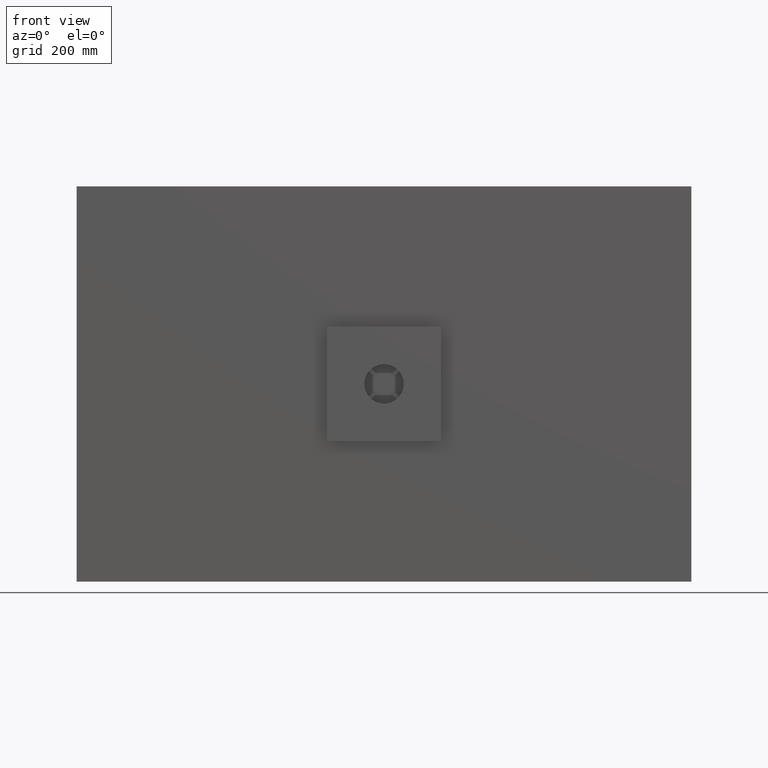
[diagram: clean part render]
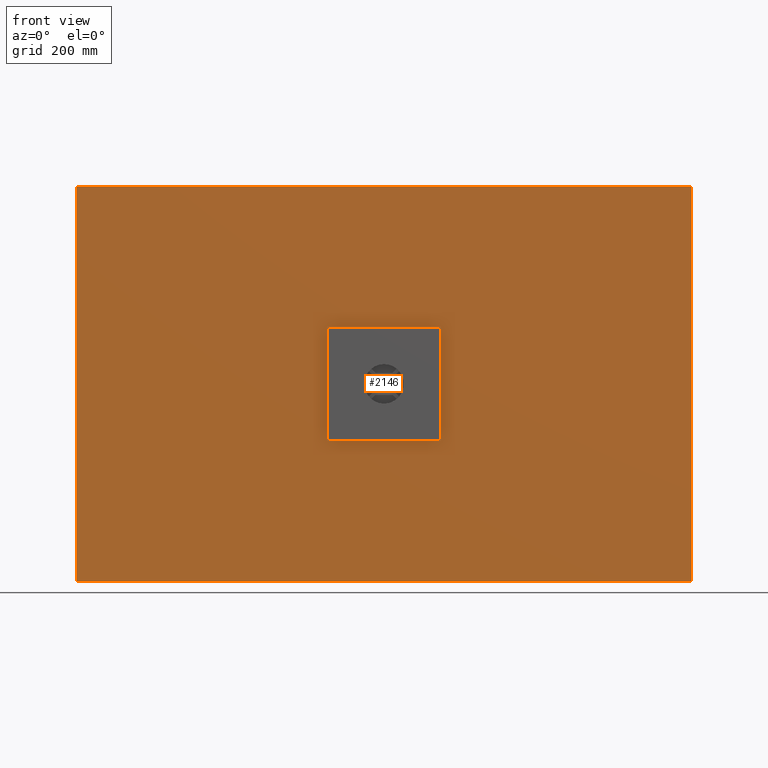
[diagram: same view with one face highlighted and labeled with its STEP entity id]
A machine part, front view. The second image highlights one B-rep face of the part: STEP entity #2146.
In plain terms, the highlighted planar face has unit normal (0, 1, 0).
Its self-contained STEP definition (entity closure, byte-faithful):
#27 = ORIENTED_EDGE ( 'NONE', *, *, #1343, .T. ) ;
#62 = FACE_OUTER_BOUND ( 'NONE', #994, .T. ) ;
#136 = CARTESIAN_POINT ( 'NONE',  ( -700.0000000000002300, 0.0000000000000000000, 450.0000000000001700 ) ) ;
#151 = DIRECTION ( 'NONE',  ( 0.0000000000000000000, 0.0000000000000000000, 1.000000000000000000 ) ) ;
#156 = DIRECTION ( 'NONE',  ( 0.0000000000000000000, 1.000000000000000000, 0.0000000000000000000 ) ) ;
#157 = CARTESIAN_POINT ( 'NONE',  ( 699.9999999999993200, 0.0000000000000000000, -449.9999999999998900 ) ) ;
#283 = ORIENTED_EDGE ( 'NONE', *, *, #2974, .T. ) ;
#379 = LINE ( 'NONE', #1898, #405 ) ;
#384 = EDGE_CURVE ( 'NONE', #2348, #1573, #1079, .T. ) ;
#392 = VECTOR ( 'NONE', #1949, 1000.000000000000000 ) ;
#405 = VECTOR ( 'NONE', #2882, 1000.000000000000000 ) ;
#411 = LINE ( 'NONE', #1636, #392 ) ;
#422 = CARTESIAN_POINT ( 'NONE',  ( -700.0000000000002300, 0.0000000000000000000, -449.9999999999998900 ) ) ;
#455 = VECTOR ( 'NONE', #567, 1000.000000000000000 ) ;
#461 = CARTESIAN_POINT ( 'NONE',  ( -700.0000000000002300, 0.0000000000000000000, 450.0000000000001700 ) ) ;
#524 = CARTESIAN_POINT ( 'NONE',  ( 77.50000000000056800, 0.0000000000000000000, 77.50000000000024200 ) ) ;
#540 = CIRCLE ( 'NONE', #2760, 2.500000000000002200 ) ;
#567 = DIRECTION ( 'NONE',  ( -1.000000000000000000, -0.0000000000000000000, 1.790682297782510200E-016 ) ) ;
#590 = FACE_BOUND ( 'NONE', #739, .T. ) ;
#674 = VERTEX_POINT ( 'NONE', #461 ) ;
#699 = EDGE_CURVE ( 'NONE', #1507, #2863, #540, .T. ) ;
#709 = CARTESIAN_POINT ( 'NONE',  ( -80.00000000000007100, 0.0000000000000000000, -77.49999999999990100 ) ) ;
#720 = DIRECTION ( 'NONE',  ( 0.0000000000000000000, 0.0000000000000000000, 1.000000000000000000 ) ) ;
#739 = EDGE_LOOP ( 'NONE', ( #1808, #2037, #27, #2326, #2024, #803, #283, #1594 ) ) ;
#761 = ORIENTED_EDGE ( 'NONE', *, *, #1483, .F. ) ;
#803 = ORIENTED_EDGE ( 'NONE', *, *, #2979, .T. ) ;
#880 = CARTESIAN_POINT ( 'NONE',  ( -77.49999999999968700, 0.0000000000000000000, 77.50000000000024200 ) ) ;
#894 = EDGE_CURVE ( 'NONE', #3077, #2471, #3048, .T. ) ;
#920 = VERTEX_POINT ( 'NONE', #3280 ) ;
#924 = ORIENTED_EDGE ( 'NONE', *, *, #894, .F. ) ;
#987 = AXIS2_PLACEMENT_3D ( 'NONE', #524, #156, #151 ) ;
#994 = EDGE_LOOP ( 'NONE', ( #2396, #761, #924, #2508 ) ) ;
#1030 = LINE ( 'NONE', #2346, #2097 ) ;
#1079 = CIRCLE ( 'NONE', #987, 2.500000000000002200 ) ;
#1084 = VECTOR ( 'NONE', #2454, 1000.000000000000000 ) ;
#1116 = LINE ( 'NONE', #2597, #455 ) ;
#1118 = VERTEX_POINT ( 'NONE', #422 ) ;
#1212 = CARTESIAN_POINT ( 'NONE',  ( 699.9999999999993200, 0.0000000000000000000, -449.9999999999998900 ) ) ;
#1225 = VERTEX_POINT ( 'NONE', #709 ) ;
#1289 = DIRECTION ( 'NONE',  ( 0.0000000000000000000, 1.000000000000000000, 0.0000000000000000000 ) ) ;
#1314 = VERTEX_POINT ( 'NONE', #2579 ) ;
#1343 = EDGE_CURVE ( 'NONE', #1573, #3185, #2178, .T. ) ;
#1413 = DIRECTION ( 'NONE',  ( 0.0000000000000000000, -0.0000000000000000000, 1.000000000000000000 ) ) ;
#1483 = EDGE_CURVE ( 'NONE', #2471, #1118, #1030, .T. ) ;
#1487 = EDGE_CURVE ( 'NONE', #3185, #920, #1819, .T. ) ;
#1500 = DIRECTION ( 'NONE',  ( 0.0000000000000000000, 0.0000000000000000000, -1.000000000000000000 ) ) ;
#1507 = VERTEX_POINT ( 'NONE', #2342 ) ;
#1526 = AXIS2_PLACEMENT_3D ( 'NONE', #2182, #2170, #2163 ) ;
#1573 = VERTEX_POINT ( 'NONE', #3035 ) ;
#1580 = EDGE_CURVE ( 'NONE', #674, #3077, #1624, .T. ) ;
#1594 = ORIENTED_EDGE ( 'NONE', *, *, #699, .T. ) ;
#1624 = LINE ( 'NONE', #136, #1084 ) ;
#1632 = CARTESIAN_POINT ( 'NONE',  ( 699.9999999999993200, 0.0000000000000000000, 450.0000000000001700 ) ) ;
#1636 = CARTESIAN_POINT ( 'NONE',  ( -700.0000000000002300, 0.0000000000000000000, -449.9999999999998900 ) ) ;
#1693 = CARTESIAN_POINT ( 'NONE',  ( 77.50000000000056800, 0.0000000000000000000, -77.49999999999990100 ) ) ;
#1808 = ORIENTED_EDGE ( 'NONE', *, *, #2499, .T. ) ;
#1819 = CIRCLE ( 'NONE', #3058, 2.500000000000002200 ) ;
#1885 = DIRECTION ( 'NONE',  ( 0.0000000000000000000, 1.000000000000000000, -0.0000000000000000000 ) ) ;
#1898 = CARTESIAN_POINT ( 'NONE',  ( -77.49999999999968700, 0.0000000000000000000, 80.00000000000018500 ) ) ;
#1949 = DIRECTION ( 'NONE',  ( 0.0000000000000000000, 0.0000000000000000000, 1.000000000000000000 ) ) ;
#1974 = CARTESIAN_POINT ( 'NONE',  ( -700.0000000000002300, 0.0000000000000000000, 450.0000000000001700 ) ) ;
#2011 = CARTESIAN_POINT ( 'NONE',  ( 80.00000000000007100, 0.0000000000000000000, -77.49999999999990100 ) ) ;
#2024 = ORIENTED_EDGE ( 'NONE', *, *, #2066, .T. ) ;
#2037 = ORIENTED_EDGE ( 'NONE', *, *, #384, .T. ) ;
#2066 = EDGE_CURVE ( 'NONE', #920, #1314, #1116, .T. ) ;
#2097 = VECTOR ( 'NONE', #3063, 1000.000000000000000 ) ;
#2114 = CARTESIAN_POINT ( 'NONE',  ( 80.00000000000007100, 0.0000000000000000000, -77.49999999999990100 ) ) ;
#2117 = DIRECTION ( 'NONE',  ( -3.581364595565019400E-016, -0.0000000000000000000, -1.000000000000000000 ) ) ;
#2141 = LINE ( 'NONE', #2463, #2218 ) ;
#2146 = ADVANCED_FACE ( 'NONE', ( #590, #62 ), #2254, .F. ) ;
#2163 = DIRECTION ( 'NONE',  ( 0.0000000000000000000, 0.0000000000000000000, 1.000000000000000000 ) ) ;
#2170 = DIRECTION ( 'NONE',  ( 0.0000000000000000000, 1.000000000000000000, 0.0000000000000000000 ) ) ;
#2178 = LINE ( 'NONE', #2114, #2277 ) ;
#2182 = CARTESIAN_POINT ( 'NONE',  ( -77.49999999999968700, 0.0000000000000000000, -77.49999999999990100 ) ) ;
#2218 = VECTOR ( 'NONE', #2483, 1000.000000000000000 ) ;
#2254 = PLANE ( 'NONE',  #2390 ) ;
#2277 = VECTOR ( 'NONE', #2117, 1000.000000000000000 ) ;
#2326 = ORIENTED_EDGE ( 'NONE', *, *, #1487, .T. ) ;
#2342 = CARTESIAN_POINT ( 'NONE',  ( -80.00000000000007100, 0.0000000000000000000, 77.50000000000024200 ) ) ;
#2346 = CARTESIAN_POINT ( 'NONE',  ( -700.0000000000002300, 0.0000000000000000000, -449.9999999999998900 ) ) ;
#2348 = VERTEX_POINT ( 'NONE', #3159 ) ;
#2390 = AXIS2_PLACEMENT_3D ( 'NONE', #1974, #2719, #1413 ) ;
#2396 = ORIENTED_EDGE ( 'NONE', *, *, #2516, .F. ) ;
#2454 = DIRECTION ( 'NONE',  ( 1.000000000000000000, 0.0000000000000000000, 0.0000000000000000000 ) ) ;
#2463 = CARTESIAN_POINT ( 'NONE',  ( -80.00000000000007100, 0.0000000000000000000, -77.49999999999990100 ) ) ;
#2471 = VERTEX_POINT ( 'NONE', #1212 ) ;
#2483 = DIRECTION ( 'NONE',  ( 0.0000000000000000000, 0.0000000000000000000, 1.000000000000000000 ) ) ;
#2499 = EDGE_CURVE ( 'NONE', #2863, #2348, #379, .T. ) ;
#2508 = ORIENTED_EDGE ( 'NONE', *, *, #1580, .F. ) ;
#2516 = EDGE_CURVE ( 'NONE', #1118, #674, #411, .T. ) ;
#2579 = CARTESIAN_POINT ( 'NONE',  ( -77.49999999999968700, 0.0000000000000000000, -79.99999999999984400 ) ) ;
#2597 = CARTESIAN_POINT ( 'NONE',  ( -77.49999999999968700, 0.0000000000000000000, -79.99999999999984400 ) ) ;
#2719 = DIRECTION ( 'NONE',  ( 0.0000000000000000000, 1.000000000000000000, 0.0000000000000000000 ) ) ;
#2738 = CARTESIAN_POINT ( 'NONE',  ( -77.49999999999968700, 0.0000000000000000000, 80.00000000000018500 ) ) ;
#2760 = AXIS2_PLACEMENT_3D ( 'NONE', #880, #1289, #720 ) ;
#2863 = VERTEX_POINT ( 'NONE', #2738 ) ;
#2882 = DIRECTION ( 'NONE',  ( 1.000000000000000000, 0.0000000000000000000, -8.953411488912548500E-017 ) ) ;
#2954 = VECTOR ( 'NONE', #3300, 1000.000000000000000 ) ;
#2974 = EDGE_CURVE ( 'NONE', #1225, #1507, #2141, .T. ) ;
#2979 = EDGE_CURVE ( 'NONE', #1314, #1225, #3087, .T. ) ;
#3035 = CARTESIAN_POINT ( 'NONE',  ( 80.00000000000007100, 0.0000000000000000000, 77.50000000000024200 ) ) ;
#3048 = LINE ( 'NONE', #157, #2954 ) ;
#3058 = AXIS2_PLACEMENT_3D ( 'NONE', #1693, #1885, #1500 ) ;
#3063 = DIRECTION ( 'NONE',  ( -1.000000000000000000, -0.0000000000000000000, -0.0000000000000000000 ) ) ;
#3077 = VERTEX_POINT ( 'NONE', #1632 ) ;
#3087 = CIRCLE ( 'NONE', #1526, 2.500000000000002200 ) ;
#3159 = CARTESIAN_POINT ( 'NONE',  ( 77.50000000000056800, 0.0000000000000000000, 80.00000000000018500 ) ) ;
#3185 = VERTEX_POINT ( 'NONE', #2011 ) ;
#3280 = CARTESIAN_POINT ( 'NONE',  ( 77.50000000000056800, 0.0000000000000000000, -79.99999999999984400 ) ) ;
#3300 = DIRECTION ( 'NONE',  ( -0.0000000000000000000, -0.0000000000000000000, -1.000000000000000000 ) ) ;